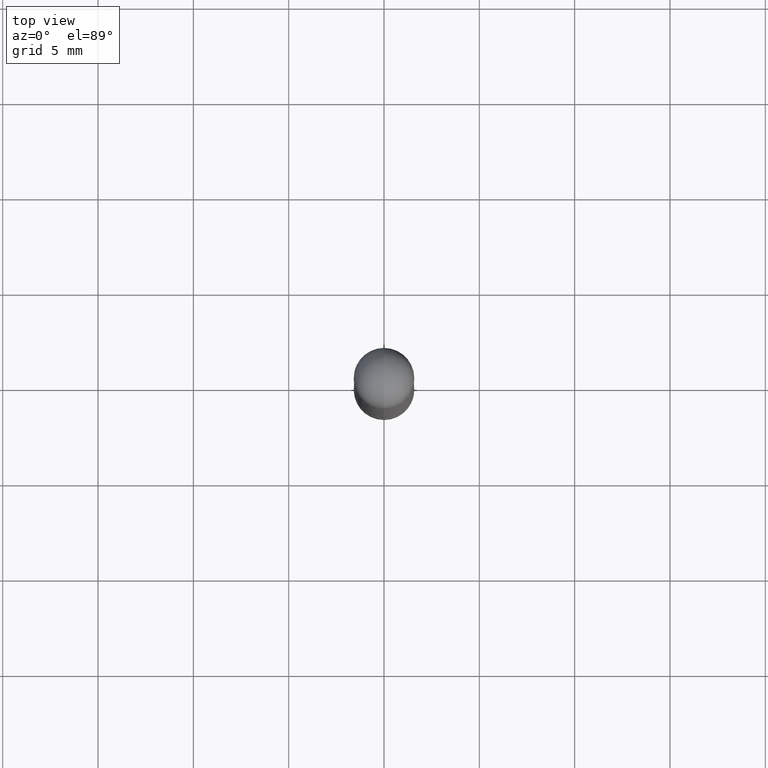
[diagram: clean part render]
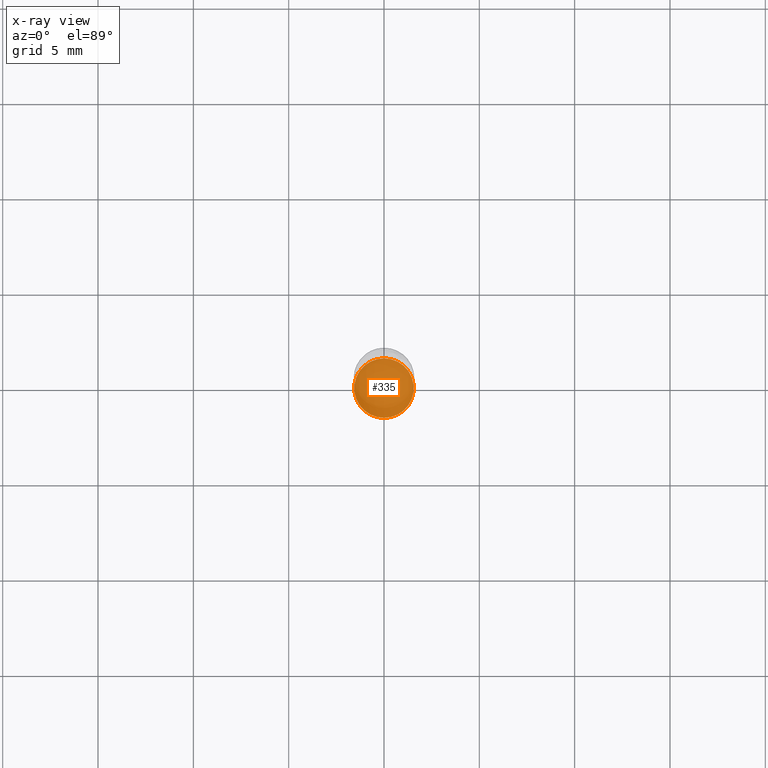
[diagram: x-ray — body ghosted, one internal face saturated and labeled with its STEP entity id]
A machine part, top view, then the same camera in x-ray: the body is ghosted and one INTERNAL B-rep face — a face not visible from any outside direction — is saturated and labeled: STEP entity #335.
In plain terms, the highlighted planar face has unit normal (-0, 0, 1).
Its self-contained STEP definition (entity closure, byte-faithful):
#64 = ORIENTED_EDGE ( 'NONE', *, *, #751, .F. ) ;
#101 = AXIS2_PLACEMENT_3D ( 'NONE', #379, #571, #315 ) ;
#113 = AXIS2_PLACEMENT_3D ( 'NONE', #419, #434, #298 ) ;
#128 = DIRECTION ( 'NONE',  ( -2.436715212064582003E-29, 3.504016983847416079E-15, 1.000000000000000000 ) ) ;
#130 = EDGE_LOOP ( 'NONE', ( #288, #64 ) ) ;
#169 = PLANE ( 'NONE',  #113 ) ;
#254 = AXIS2_PLACEMENT_3D ( 'NONE', #455, #128, #375 ) ;
#288 = ORIENTED_EDGE ( 'NONE', *, *, #519, .F. ) ;
#298 = DIRECTION ( 'NONE',  ( -6.982962677686265922E-15, -1.000000000000000000, 3.504016983847416079E-15 ) ) ;
#315 = DIRECTION ( 'NONE',  ( -6.982962677686265922E-15, -1.000000000000000000, 4.442029257990669764E-15 ) ) ;
#318 = CIRCLE ( 'NONE', #254, 0.06150000000000003381 ) ;
#335 = ADVANCED_FACE ( 'NONE', ( #628 ), #169, .F. ) ;
#375 = DIRECTION ( 'NONE',  ( -6.982962677686265922E-15, -1.000000000000000000, 4.442029257990669764E-15 ) ) ;
#379 = CARTESIAN_POINT ( 'NONE',  ( 3.045894015080727714E-29, -4.380021229809271085E-15, -1.250000000000000000 ) ) ;
#419 = CARTESIAN_POINT ( 'NONE',  ( 3.045894015080727714E-29, -4.380021229809271085E-15, -1.250000000000000000 ) ) ;
#431 = VERTEX_POINT ( 'NONE', #438 ) ;
#434 = DIRECTION ( 'NONE',  ( -2.436715212064581723E-29, 3.504016983847416079E-15, 1.000000000000000000 ) ) ;
#438 = CARTESIAN_POINT ( 'NONE',  ( 4.405364961712933214E-16, 0.06149999999999564843, -1.250000000000000222 ) ) ;
#455 = CARTESIAN_POINT ( 'NONE',  ( 3.045894015080727714E-29, -4.380021229809271085E-15, -1.250000000000000000 ) ) ;
#519 = EDGE_CURVE ( 'NONE', #621, #431, #318, .T. ) ;
#571 = DIRECTION ( 'NONE',  ( -2.436715212064582003E-29, 3.504016983847416079E-15, 1.000000000000000000 ) ) ;
#611 = CARTESIAN_POINT ( 'NONE',  ( -4.294522046776751361E-16, -0.06150000000000441225, -1.249999999999999778 ) ) ;
#621 = VERTEX_POINT ( 'NONE', #611 ) ;
#628 = FACE_OUTER_BOUND ( 'NONE', #130, .T. ) ;
#751 = EDGE_CURVE ( 'NONE', #431, #621, #813, .T. ) ;
#813 = CIRCLE ( 'NONE', #101, 0.06150000000000003381 ) ;